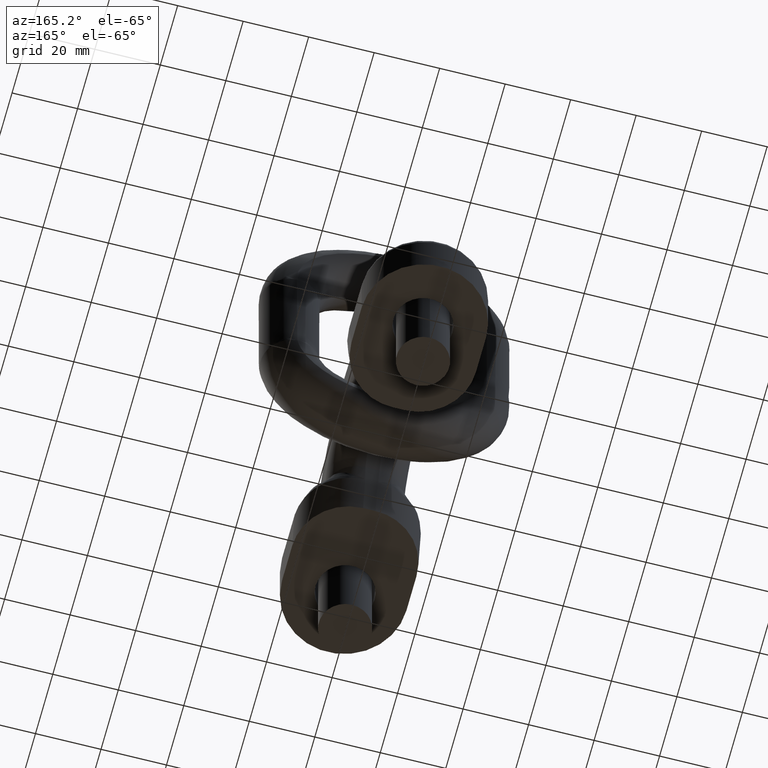
[diagram: clean part render]
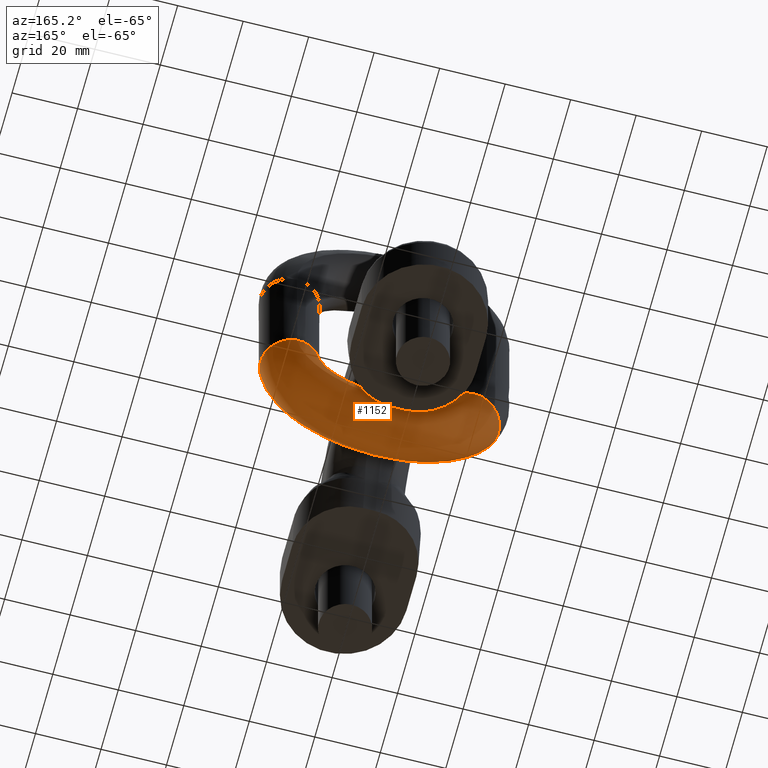
[diagram: same view with one face highlighted and labeled with its STEP entity id]
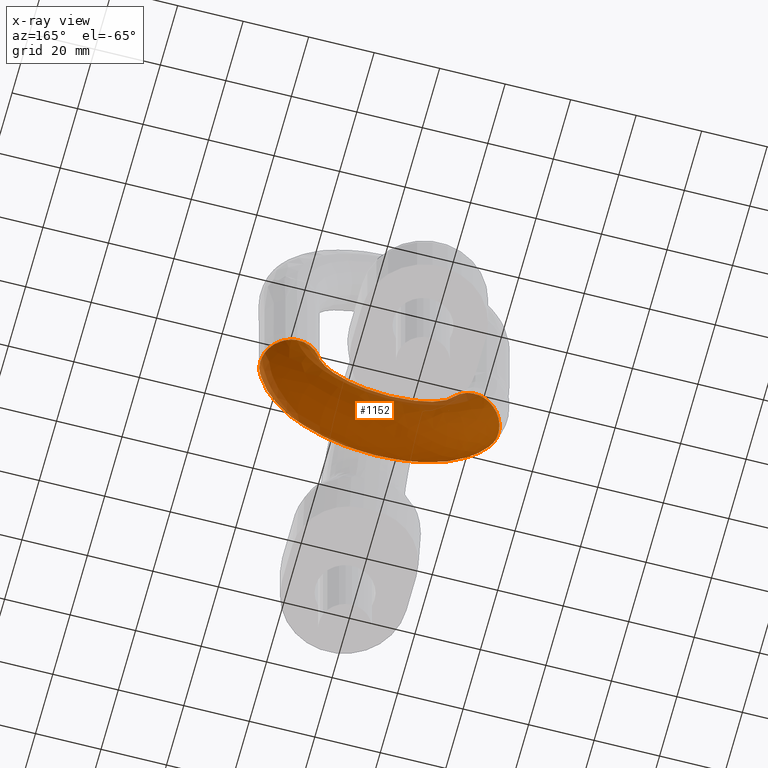
[diagram: x-ray of the same camera — body ghosted, the highlighted face saturated]
A machine part, auxiliary view. The second image highlights one B-rep face of the part: STEP entity #1152.
The next image is the same camera in x-ray: the body ghosted, the highlighted face saturated — about 4% of this face is hidden behind the body in this view.
In plain terms, the highlighted face is a freeform B-spline surface patch.
Its self-contained STEP definition (entity closure, byte-faithful):
#31=(
BOUNDED_CURVE()
B_SPLINE_CURVE(4,(#7214,#7215,#7216,#7217,#7218,#7219,#7220,#7221,#7222,
#7223,#7224,#7225,#7226,#7227),.UNSPECIFIED.,.T.,.F.)
B_SPLINE_CURVE_WITH_KNOTS((2,3,3,3,3,3,2),(-0.25,0.,0.25,0.5,0.75,1.,1.25),
 .UNSPECIFIED.)
CURVE()
GEOMETRIC_REPRESENTATION_ITEM()
RATIONAL_B_SPLINE_CURVE((1.0166117137858,1.0166117137858,0.958470715535493,
1.0166117137858,1.0166117137858,0.958470715535493,1.0166117137858,1.0166117137858,
0.958470715535493,1.0166117137858,1.0166117137858,0.958470715535493,1.0166117137858,
1.0166117137858))
REPRESENTATION_ITEM('')
);
#33=(
BOUNDED_CURVE()
B_SPLINE_CURVE(4,(#7384,#7385,#7386,#7387,#7388,#7389,#7390,#7391,#7392,
#7393,#7394,#7395,#7396,#7397),.UNSPECIFIED.,.T.,.F.)
B_SPLINE_CURVE_WITH_KNOTS((2,3,3,3,3,3,2),(-0.25,0.,0.25,0.5,0.75,1.,1.25),
 .UNSPECIFIED.)
CURVE()
GEOMETRIC_REPRESENTATION_ITEM()
RATIONAL_B_SPLINE_CURVE((1.0166117137858,1.0166117137858,0.958470715535492,
1.0166117137858,1.0166117137858,0.958470715535492,1.0166117137858,1.0166117137858,
0.958470715535492,1.0166117137858,1.0166117137858,0.958470715535492,1.0166117137858,
1.0166117137858))
REPRESENTATION_ITEM('')
);
#828=(
BOUNDED_SURFACE()
B_SPLINE_SURFACE(4,3,((#7399,#7400,#7401,#7402,#7403,#7404,#7405,#7406,
#7407,#7408,#7409),(#7410,#7411,#7412,#7413,#7414,#7415,#7416,#7417,#7418,
#7419,#7420),(#7421,#7422,#7423,#7424,#7425,#7426,#7427,#7428,#7429,#7430,
#7431),(#7432,#7433,#7434,#7435,#7436,#7437,#7438,#7439,#7440,#7441,#7442),
(#7443,#7444,#7445,#7446,#7447,#7448,#7449,#7450,#7451,#7452,#7453),(#7454,
#7455,#7456,#7457,#7458,#7459,#7460,#7461,#7462,#7463,#7464),(#7465,#7466,
#7467,#7468,#7469,#7470,#7471,#7472,#7473,#7474,#7475),(#7476,#7477,#7478,
#7479,#7480,#7481,#7482,#7483,#7484,#7485,#7486),(#7487,#7488,#7489,#7490,
#7491,#7492,#7493,#7494,#7495,#7496,#7497),(#7498,#7499,#7500,#7501,#7502,
#7503,#7504,#7505,#7506,#7507,#7508),(#7509,#7510,#7511,#7512,#7513,#7514,
#7515,#7516,#7517,#7518,#7519),(#7520,#7521,#7522,#7523,#7524,#7525,#7526,
#7527,#7528,#7529,#7530),(#7531,#7532,#7533,#7534,#7535,#7536,#7537,#7538,
#7539,#7540,#7541),(#7542,#7543,#7544,#7545,#7546,#7547,#7548,#7549,#7550,
#7551,#7552)),.UNSPECIFIED.,.T.,.F.,.F.)
B_SPLINE_SURFACE_WITH_KNOTS((2,3,3,3,3,3,2),(4,1,1,1,1,1,1,1,4),(-0.25,
0.,0.25,0.5,0.75,1.,1.25),(0.,0.0402445690371685,0.166066532271765,0.230125486944208,
0.324065280574437,0.557548395551591,0.74056319808388,0.943903732899486,
1.),.UNSPECIFIED.)
GEOMETRIC_REPRESENTATION_ITEM()
RATIONAL_B_SPLINE_SURFACE(((1.0166117137858,1.0166117137858,1.0166117137858,
1.0166117137858,1.0166117137858,1.0166117137858,1.0166117137858,1.0166117137858,
1.0166117137858,1.0166117137858,1.0166117137858),(1.0166117137858,1.0166117137858,
1.0166117137858,1.0166117137858,1.0166117137858,1.0166117137858,1.0166117137858,
1.0166117137858,1.0166117137858,1.0166117137858,1.0166117137858),(0.958470715535492,
0.958470715535492,0.958470715535493,0.958470715535492,0.958470715535492,
0.958470715535492,0.958470715535492,0.958470715535493,0.958470715535491,
0.958470715535493,0.958470715535493),(1.0166117137858,1.0166117137858,1.0166117137858,
1.0166117137858,1.0166117137858,1.0166117137858,1.0166117137858,1.0166117137858,
1.0166117137858,1.0166117137858,1.0166117137858),(1.0166117137858,1.0166117137858,
1.0166117137858,1.0166117137858,1.0166117137858,1.0166117137858,1.0166117137858,
1.0166117137858,1.0166117137858,1.0166117137858,1.0166117137858),(0.958470715535492,
0.958470715535492,0.958470715535493,0.958470715535492,0.958470715535492,
0.958470715535492,0.958470715535492,0.958470715535493,0.958470715535491,
0.958470715535493,0.958470715535493),(1.0166117137858,1.0166117137858,1.0166117137858,
1.0166117137858,1.0166117137858,1.0166117137858,1.0166117137858,1.0166117137858,
1.0166117137858,1.0166117137858,1.0166117137858),(1.0166117137858,1.0166117137858,
1.0166117137858,1.0166117137858,1.0166117137858,1.0166117137858,1.0166117137858,
1.0166117137858,1.0166117137858,1.0166117137858,1.0166117137858),(0.958470715535492,
0.958470715535492,0.958470715535493,0.958470715535492,0.958470715535492,
0.958470715535492,0.958470715535492,0.958470715535493,0.958470715535491,
0.958470715535493,0.958470715535493),(1.0166117137858,1.0166117137858,1.0166117137858,
1.0166117137858,1.0166117137858,1.0166117137858,1.0166117137858,1.0166117137858,
1.0166117137858,1.0166117137858,1.0166117137858),(1.0166117137858,1.0166117137858,
1.0166117137858,1.0166117137858,1.0166117137858,1.0166117137858,1.0166117137858,
1.0166117137858,1.0166117137858,1.0166117137858,1.0166117137858),(0.958470715535492,
0.958470715535492,0.958470715535493,0.958470715535492,0.958470715535492,
0.958470715535492,0.958470715535492,0.958470715535493,0.958470715535491,
0.958470715535493,0.958470715535493),(1.0166117137858,1.0166117137858,1.0166117137858,
1.0166117137858,1.0166117137858,1.0166117137858,1.0166117137858,1.0166117137858,
1.0166117137858,1.0166117137858,1.0166117137858),(1.0166117137858,1.0166117137858,
1.0166117137858,1.0166117137858,1.0166117137858,1.0166117137858,1.0166117137858,
1.0166117137858,1.0166117137858,1.0166117137858,1.0166117137858)))
REPRESENTATION_ITEM('')
SURFACE()
);
#1152=ADVANCED_FACE('',(#1509,#1510),#828,.F.);
#1509=FACE_BOUND('',#1711,.T.);
#1510=FACE_BOUND('',#1712,.T.);
#1711=EDGE_LOOP('',(#2841));
#1712=EDGE_LOOP('',(#2842));
#2841=ORIENTED_EDGE('',*,*,#3527,.T.);
#2842=ORIENTED_EDGE('',*,*,#3525,.F.);
#3117=VERTEX_POINT('',#7228);
#3119=VERTEX_POINT('',#7398);
#3525=EDGE_CURVE('',#3117,#3117,#31,.T.);
#3527=EDGE_CURVE('',#3119,#3119,#33,.T.);
#7214=CARTESIAN_POINT('',(31.9660441678412,9.00000000000001,48.2815055293157));
#7215=CARTESIAN_POINT('',(25.6447843779362,9.00000000000001,49.0141248402927));
#7216=CARTESIAN_POINT('',(21.4461178941976,7.40900974233027,49.5007405227));
#7217=CARTESIAN_POINT('',(19.8658029467214,3.18198051533947,49.6838953504443));
#7218=CARTESIAN_POINT('',(19.8658029467214,-3.18198051533947,49.6838953504443));
#7219=CARTESIAN_POINT('',(21.4461178941976,-7.40900974233027,49.5007405227));
#7220=CARTESIAN_POINT('',(25.6447843779362,-9.00000000000001,49.0141248402927));
#7221=CARTESIAN_POINT('',(31.9660441678412,-9.,48.2815055293157));
#7222=CARTESIAN_POINT('',(36.1647106515798,-7.40900974233027,47.7948898469083));
#7223=CARTESIAN_POINT('',(37.7450255990561,-3.18198051533946,47.6117350191641));
#7224=CARTESIAN_POINT('',(37.7450255990561,3.18198051533946,47.6117350191641));
#7225=CARTESIAN_POINT('',(36.1647106515798,7.40900974233027,47.7948898469083));
#7226=CARTESIAN_POINT('',(31.9660441678412,9.00000000000001,48.2815055293157));
#7227=CARTESIAN_POINT('',(25.6447843779362,9.00000000000001,49.0141248402927));
#7228=CARTESIAN_POINT('',(28.8054142728887,9.00000000000001,48.6478151848042));
#7384=CARTESIAN_POINT('',(-29.5778305959598,9.00000000000001,39.3160526159044));
#7385=CARTESIAN_POINT('',(-23.7288381389911,9.,41.8211179859328));
#7386=CARTESIAN_POINT('',(-19.8438580228545,7.40900974233027,43.4850163793368));
#7387=CARTESIAN_POINT('',(-18.3816099086124,3.18198051533946,44.1112827218438));
#7388=CARTESIAN_POINT('',(-18.3816099086124,-3.18198051533947,44.1112827218438));
#7389=CARTESIAN_POINT('',(-19.8438580228545,-7.40900974233027,43.4850163793368));
#7390=CARTESIAN_POINT('',(-23.7288381389911,-9.00000000000001,41.8211179859328));
#7391=CARTESIAN_POINT('',(-29.5778305959598,-9.,39.3160526159044));
#7392=CARTESIAN_POINT('',(-33.4628107120963,-7.40900974233027,37.6521542225004));
#7393=CARTESIAN_POINT('',(-34.9250588263385,-3.18198051533947,37.0258878799934));
#7394=CARTESIAN_POINT('',(-34.9250588263385,3.18198051533946,37.0258878799934));
#7395=CARTESIAN_POINT('',(-33.4628107120963,7.40900974233027,37.6521542225004));
#7396=CARTESIAN_POINT('',(-29.5778305959598,9.00000000000001,39.3160526159044));
#7397=CARTESIAN_POINT('',(-23.7288381389911,9.,41.8211179859328));
#7398=CARTESIAN_POINT('',(-26.6533343674754,9.,40.5685853009186));
#7399=CARTESIAN_POINT('',(-23.7288381389911,9.,41.8211179859328));
#7400=CARTESIAN_POINT('',(-23.3020095992357,9.,40.8274658248059));
#7401=CARTESIAN_POINT('',(-21.322982100736,8.99999999999999,36.943017482024));
#7402=CARTESIAN_POINT('',(-17.5826228512097,9.00000000000002,32.6952955111269));
#7403=CARTESIAN_POINT('',(-12.1547052917207,8.99999999999998,29.0042776330258));
#7404=CARTESIAN_POINT('',(-4.02082123353279,9.00000000000003,25.6987773814488));
#7405=CARTESIAN_POINT('',(7.03631290142327,8.99999999999997,26.0236106161838));
#7406=CARTESIAN_POINT('',(18.5557350152128,9.00000000000003,32.626101316463));
#7407=CARTESIAN_POINT('',(24.1825064383842,8.99999999999998,41.2568601356038));
#7408=CARTESIAN_POINT('',(25.4811544869398,9.,47.5949659003003));
#7409=CARTESIAN_POINT('',(25.6447843779362,9.00000000000001,49.0141248402927));
#7410=CARTESIAN_POINT('',(-29.5778305959598,9.00000000000001,39.3160526159044));
#7411=CARTESIAN_POINT('',(-29.0457918097129,9.,38.0757815186962));
#7412=CARTESIAN_POINT('',(-26.5789478895486,9.00000000000001,33.2222995761994));
#7413=CARTESIAN_POINT('',(-21.9166162743152,9.00000000000001,27.9410937336901));
#7414=CARTESIAN_POINT('',(-15.1507550413584,8.99999999999999,23.3348763049782));
#7415=CARTESIAN_POINT('',(-5.01192551500275,9.00000000000002,19.2147320430724));
#7416=CARTESIAN_POINT('',(8.77071476500396,8.99999999999997,19.6239000182312));
#7417=CARTESIAN_POINT('',(23.1295937735471,9.00000000000004,27.8452993235644));
#7418=CARTESIAN_POINT('',(30.1433249543102,8.99999999999998,38.6204671452483));
#7419=CARTESIAN_POINT('',(31.7620806544178,9.00000000000001,46.4931512677366));
#7420=CARTESIAN_POINT('',(31.9660441678412,9.00000000000001,48.2815055293157));
#7421=CARTESIAN_POINT('',(-33.4628107120963,7.40900974233027,37.6521542225004));
#7422=CARTESIAN_POINT('',(-32.8608898532293,7.40900974233027,36.248075483209));
#7423=CARTESIAN_POINT('',(-30.0700316498469,7.40900974233026,30.7509482813863));
#7424=CARTESIAN_POINT('',(-24.7953134851776,7.40900974233028,24.7832884348583));
#7425=CARTESIAN_POINT('',(-17.1407719186122,7.40900974233027,19.569183052353));
#7426=CARTESIAN_POINT('',(-5.67023042048113,7.40900974233027,14.9079411902807));
#7427=CARTESIAN_POINT('',(9.92272800539941,7.40900974233027,15.3731254438083));
#7428=CARTESIAN_POINT('',(26.1676127932117,7.40900974233027,24.6698258008608));
#7429=CARTESIAN_POINT('',(34.102581455433,7.40900974233027,36.8693391653088));
#7430=CARTESIAN_POINT('',(35.9339569991207,7.40900974233027,45.7613110455666));
#7431=CARTESIAN_POINT('',(36.1647106515798,7.40900974233027,47.7948898469083));
#7432=CARTESIAN_POINT('',(-34.9250588263385,3.18198051533946,37.0258878799934));
#7433=CARTESIAN_POINT('',(-34.2968354058486,3.18198051533946,35.5601544066816));
#7434=CARTESIAN_POINT('',(-31.3840230970501,3.18198051533946,29.8207688049301));
#7435=CARTESIAN_POINT('',(-25.878811840954,3.18198051533948,23.5947379904991));
#7436=CARTESIAN_POINT('',(-17.8897843560216,3.18198051533947,18.1518327203411));
#7437=CARTESIAN_POINT('',(-5.91800649084858,3.18198051533946,13.2869298556866));
#7438=CARTESIAN_POINT('',(10.3563284712945,3.18198051533947,13.7731977943201));
#7439=CARTESIAN_POINT('',(27.3110774827954,3.18198051533947,23.4746253026362));
#7440=CARTESIAN_POINT('',(35.5927860844143,3.18198051533946,36.2102409177199));
#7441=CARTESIAN_POINT('',(37.5041885409903,3.18198051533947,45.4858573874257));
#7442=CARTESIAN_POINT('',(37.7450255990561,3.18198051533946,47.6117350191641));
#7443=CARTESIAN_POINT('',(-34.9250588263385,-3.18198051533947,37.0258878799934));
#7444=CARTESIAN_POINT('',(-34.2968354058486,-3.18198051533947,35.5601544066816));
#7445=CARTESIAN_POINT('',(-31.3840230970501,-3.18198051533946,29.8207688049301));
#7446=CARTESIAN_POINT('',(-25.878811840954,-3.18198051533946,23.5947379904991));
#7447=CARTESIAN_POINT('',(-17.8897843560216,-3.18198051533946,18.1518327203411));
#7448=CARTESIAN_POINT('',(-5.91800649084858,-3.18198051533946,13.2869298556866));
#7449=CARTESIAN_POINT('',(10.3563284712945,-3.18198051533946,13.7731977943201));
#7450=CARTESIAN_POINT('',(27.3110774827954,-3.18198051533946,23.4746253026362));
#7451=CARTESIAN_POINT('',(35.5927860844143,-3.18198051533947,36.2102409177199));
#7452=CARTESIAN_POINT('',(37.5041885409903,-3.18198051533946,45.4858573874257));
#7453=CARTESIAN_POINT('',(37.7450255990561,-3.18198051533946,47.6117350191641));
#7454=CARTESIAN_POINT('',(-33.4628107120963,-7.40900974233027,37.6521542225004));
#7455=CARTESIAN_POINT('',(-32.8608898532293,-7.40900974233027,36.248075483209));
#7456=CARTESIAN_POINT('',(-30.0700316498469,-7.40900974233027,30.7509482813863));
#7457=CARTESIAN_POINT('',(-24.7953134851777,-7.40900974233026,24.7832884348583));
#7458=CARTESIAN_POINT('',(-17.1407719186122,-7.40900974233026,19.569183052353));
#7459=CARTESIAN_POINT('',(-5.67023042048114,-7.40900974233028,14.9079411902807));
#7460=CARTESIAN_POINT('',(9.92272800539942,-7.40900974233026,15.3731254438082));
#7461=CARTESIAN_POINT('',(26.1676127932117,-7.40900974233026,24.6698258008608));
#7462=CARTESIAN_POINT('',(34.102581455433,-7.40900974233027,36.8693391653088));
#7463=CARTESIAN_POINT('',(35.9339569991207,-7.40900974233027,45.7613110455667));
#7464=CARTESIAN_POINT('',(36.1647106515798,-7.40900974233027,47.7948898469083));
#7465=CARTESIAN_POINT('',(-29.5778305959598,-9.,39.3160526159044));
#7466=CARTESIAN_POINT('',(-29.045791809713,-9.,38.0757815186962));
#7467=CARTESIAN_POINT('',(-26.5789478895486,-8.99999999999999,33.2222995761994));
#7468=CARTESIAN_POINT('',(-21.9166162743152,-9.00000000000001,27.9410937336901));
#7469=CARTESIAN_POINT('',(-15.1507550413584,-8.99999999999998,23.3348763049782));
#7470=CARTESIAN_POINT('',(-5.01192551500273,-9.00000000000001,19.2147320430724));
#7471=CARTESIAN_POINT('',(8.77071476500394,-8.99999999999999,19.6239000182312));
#7472=CARTESIAN_POINT('',(23.1295937735471,-9.00000000000001,27.8452993235644));
#7473=CARTESIAN_POINT('',(30.1433249543102,-8.99999999999999,38.6204671452483));
#7474=CARTESIAN_POINT('',(31.7620806544178,-9.,46.4931512677366));
#7475=CARTESIAN_POINT('',(31.9660441678412,-9.,48.2815055293157));
#7476=CARTESIAN_POINT('',(-23.7288381389911,-9.00000000000001,41.8211179859328));
#7477=CARTESIAN_POINT('',(-23.3020095992357,-9.,40.8274658248059));
#7478=CARTESIAN_POINT('',(-21.322982100736,-9.,36.943017482024));
#7479=CARTESIAN_POINT('',(-17.5826228512097,-9.00000000000002,32.6952955111269));
#7480=CARTESIAN_POINT('',(-12.1547052917208,-8.99999999999999,29.0042776330258));
#7481=CARTESIAN_POINT('',(-4.02082123353279,-9.00000000000002,25.6987773814488));
#7482=CARTESIAN_POINT('',(7.03631290142327,-8.99999999999997,26.0236106161838));
#7483=CARTESIAN_POINT('',(18.5557350152128,-9.00000000000004,32.6261013164629));
#7484=CARTESIAN_POINT('',(24.1825064383842,-8.99999999999997,41.2568601356038));
#7485=CARTESIAN_POINT('',(25.4811544869398,-9.00000000000001,47.5949659003003));
#7486=CARTESIAN_POINT('',(25.6447843779362,-9.00000000000001,49.0141248402927));
#7487=CARTESIAN_POINT('',(-19.8438580228545,-7.40900974233027,43.4850163793368));
#7488=CARTESIAN_POINT('',(-19.4869115557194,-7.40900974233027,42.6551718602931));
#7489=CARTESIAN_POINT('',(-17.8318983404377,-7.40900974233026,39.4143687768372));
#7490=CARTESIAN_POINT('',(-14.7039256403473,-7.40900974233027,35.8531008099587));
#7491=CARTESIAN_POINT('',(-10.1646884144669,-7.40900974233028,32.769970885651));
#7492=CARTESIAN_POINT('',(-3.36251632805439,-7.40900974233026,30.0055682342406));
#7493=CARTESIAN_POINT('',(5.88429966102781,-7.40900974233028,30.2743851906066));
#7494=CARTESIAN_POINT('',(15.5177159955482,-7.40900974233026,35.8015748391665));
#7495=CARTESIAN_POINT('',(20.2232499372615,-7.40900974233028,43.0079881155433));
#7496=CARTESIAN_POINT('',(21.3092781422368,-7.40900974233027,48.3268061224702));
#7497=CARTESIAN_POINT('',(21.4461178941976,-7.40900974233027,49.5007405227));
#7498=CARTESIAN_POINT('',(-18.3816099086124,-3.18198051533947,44.1112827218438));
#7499=CARTESIAN_POINT('',(-18.0509660031,-3.18198051533946,43.3430929368205));
#7500=CARTESIAN_POINT('',(-16.5179068932346,-3.18198051533946,40.3445482532932));
#7501=CARTESIAN_POINT('',(-13.6204272845709,-3.18198051533948,37.041651254318));
#7502=CARTESIAN_POINT('',(-9.41567597705752,-3.18198051533947,34.1873212176629));
#7503=CARTESIAN_POINT('',(-3.11474025768692,-3.18198051533946,31.6265795688348));
#7504=CARTESIAN_POINT('',(5.45069919513265,-3.18198051533947,31.8743128400947));
#7505=CARTESIAN_POINT('',(14.3742513059646,-3.18198051533947,36.9967753373913));
#7506=CARTESIAN_POINT('',(18.73304530828,-3.18198051533946,43.6670863631321));
#7507=CARTESIAN_POINT('',(19.7390466003673,-3.18198051533947,48.6022597806111));
#7508=CARTESIAN_POINT('',(19.8658029467214,-3.18198051533947,49.6838953504443));
#7509=CARTESIAN_POINT('',(-18.3816099086124,3.18198051533946,44.1112827218438));
#7510=CARTESIAN_POINT('',(-18.0509660031,3.18198051533946,43.3430929368205));
#7511=CARTESIAN_POINT('',(-16.5179068932346,3.18198051533946,40.3445482532932));
#7512=CARTESIAN_POINT('',(-13.6204272845709,3.18198051533945,37.041651254318));
#7513=CARTESIAN_POINT('',(-9.41567597705752,3.18198051533946,34.1873212176629));
#7514=CARTESIAN_POINT('',(-3.11474025768692,3.18198051533947,31.6265795688348));
#7515=CARTESIAN_POINT('',(5.45069919513266,3.18198051533945,31.8743128400947));
#7516=CARTESIAN_POINT('',(14.3742513059646,3.18198051533947,36.9967753373913));
#7517=CARTESIAN_POINT('',(18.73304530828,3.18198051533946,43.6670863631321));
#7518=CARTESIAN_POINT('',(19.7390466003673,3.18198051533946,48.6022597806111));
#7519=CARTESIAN_POINT('',(19.8658029467214,3.18198051533947,49.6838953504443));
#7520=CARTESIAN_POINT('',(-19.8438580228545,7.40900974233027,43.4850163793368));
#7521=CARTESIAN_POINT('',(-19.4869115557193,7.40900974233027,42.6551718602931));
#7522=CARTESIAN_POINT('',(-17.8318983404377,7.40900974233027,39.4143687768371));
#7523=CARTESIAN_POINT('',(-14.7039256403473,7.40900974233026,35.8531008099587));
#7524=CARTESIAN_POINT('',(-10.1646884144669,7.40900974233026,32.769970885651));
#7525=CARTESIAN_POINT('',(-3.36251632805439,7.40900974233029,30.0055682342407));
#7526=CARTESIAN_POINT('',(5.8842996610278,7.40900974233023,30.2743851906066));
#7527=CARTESIAN_POINT('',(15.5177159955482,7.40900974233029,35.8015748391665));
#7528=CARTESIAN_POINT('',(20.2232499372615,7.40900974233026,43.0079881155432));
#7529=CARTESIAN_POINT('',(21.3092781422368,7.40900974233027,48.3268061224702));
#7530=CARTESIAN_POINT('',(21.4461178941976,7.40900974233027,49.5007405227));
#7531=CARTESIAN_POINT('',(-23.7288381389911,9.,41.8211179859328));
#7532=CARTESIAN_POINT('',(-23.3020095992357,9.,40.8274658248059));
#7533=CARTESIAN_POINT('',(-21.322982100736,8.99999999999999,36.943017482024));
#7534=CARTESIAN_POINT('',(-17.5826228512097,9.00000000000002,32.6952955111269));
#7535=CARTESIAN_POINT('',(-12.1547052917207,8.99999999999998,29.0042776330258));
#7536=CARTESIAN_POINT('',(-4.02082123353279,9.00000000000003,25.6987773814488));
#7537=CARTESIAN_POINT('',(7.03631290142327,8.99999999999997,26.0236106161838));
#7538=CARTESIAN_POINT('',(18.5557350152128,9.00000000000003,32.626101316463));
#7539=CARTESIAN_POINT('',(24.1825064383842,8.99999999999998,41.2568601356038));
#7540=CARTESIAN_POINT('',(25.4811544869398,9.,47.5949659003003));
#7541=CARTESIAN_POINT('',(25.6447843779362,9.00000000000001,49.0141248402927));
#7542=CARTESIAN_POINT('',(-29.5778305959598,9.00000000000001,39.3160526159044));
#7543=CARTESIAN_POINT('',(-29.0457918097129,9.,38.0757815186962));
#7544=CARTESIAN_POINT('',(-26.5789478895486,9.00000000000001,33.2222995761994));
#7545=CARTESIAN_POINT('',(-21.9166162743152,9.00000000000001,27.9410937336901));
#7546=CARTESIAN_POINT('',(-15.1507550413584,8.99999999999999,23.3348763049782));
#7547=CARTESIAN_POINT('',(-5.01192551500275,9.00000000000002,19.2147320430724));
#7548=CARTESIAN_POINT('',(8.77071476500396,8.99999999999997,19.6239000182312));
#7549=CARTESIAN_POINT('',(23.1295937735471,9.00000000000004,27.8452993235644));
#7550=CARTESIAN_POINT('',(30.1433249543102,8.99999999999998,38.6204671452483));
#7551=CARTESIAN_POINT('',(31.7620806544178,9.00000000000001,46.4931512677366));
#7552=CARTESIAN_POINT('',(31.9660441678412,9.00000000000001,48.2815055293157));